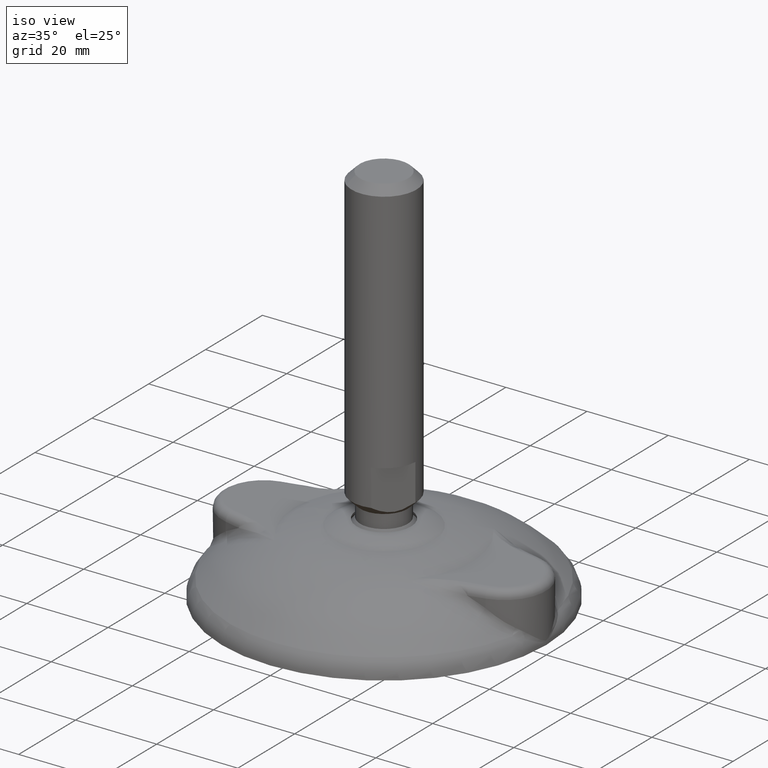
[diagram: clean part render]
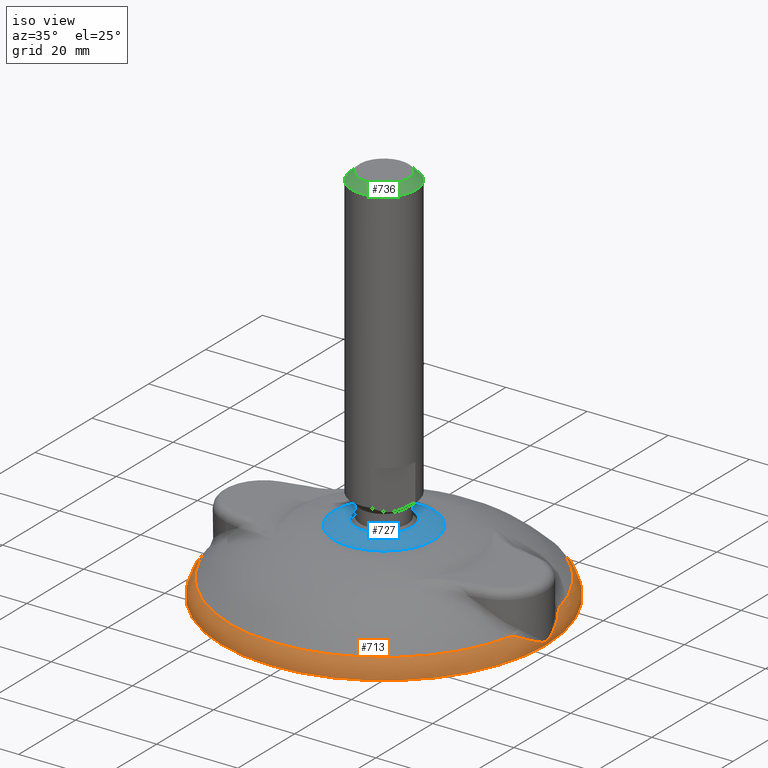
[diagram: same view with three faces highlighted in distinct colors, each labeled with its STEP entity id]
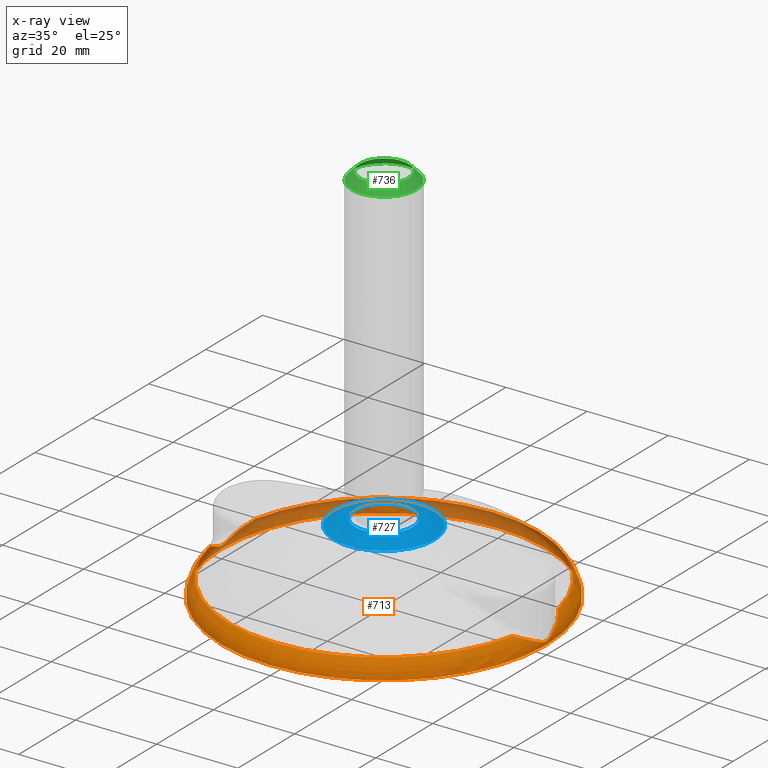
[diagram: x-ray of the same camera — body ghosted, the three highlighted faces saturated]
A machine part, iso view with three faces highlighted in distinct colors.
The next image is the same camera in x-ray (body ghosted, the three faces saturated) — at least one of them is partly hidden behind the body in this view.
Their STEP definitions:

[orange] entity #713 — the highlighted toroidal blend (fillet) surface has major radius 34 mm and minor (blend) radius 6 mm.
#51=TOROIDAL_SURFACE('',#781,34.,6.);
#104=B_SPLINE_CURVE_WITH_KNOTS('',3,(#1419,#1420,#1421,#1422,#1423,#1424,
#1425,#1426,#1427,#1428,#1429,#1430,#1431,#1432),.UNSPECIFIED.,.F.,.F.,
(4,1,1,1,1,1,1,1,1,1,1,4),(-2.06765648479848,-1.77227698697012,-1.47689748914177,
-1.32920774022759,-1.18151799131341,-1.03382824239924,-0.886138493485061,
-0.812293619027972,-0.738448744570884,-0.590758995656707,-0.295379497828354,
0.),.UNSPECIFIED.);
#110=B_SPLINE_CURVE_WITH_KNOTS('',3,(#1516,#1517,#1518,#1519,#1520,#1521,
#1522,#1523,#1524,#1525,#1526,#1527,#1528),.UNSPECIFIED.,.F.,.F.,(4,1,1,
1,1,1,1,1,1,1,4),(-2.06765648479847,-1.77227698697011,-1.47689748914176,
-1.32920774022759,-1.18151799131341,-1.03382824239923,-0.886138493485057,
-0.812293619027969,-0.738448744570881,-0.590758995656705,0.),
 .UNSPECIFIED.);
#136=FACE_BOUND('',#236,.T.);
#182=FACE_OUTER_BOUND('',#235,.T.);
#235=EDGE_LOOP('',(#574));
#236=EDGE_LOOP('',(#575,#576,#577,#578));
#297=CIRCLE('',#782,40.);
#298=CIRCLE('',#783,38.1666666666667);
#299=CIRCLE('',#784,38.1666666666667);
#352=VERTEX_POINT('',#1350);
#354=VERTEX_POINT('',#1417);
#357=VERTEX_POINT('',#1511);
#358=VERTEX_POINT('',#1513);
#359=VERTEX_POINT('',#1515);
#432=EDGE_CURVE('',#354,#352,#104,.T.);
#441=EDGE_CURVE('',#357,#357,#297,.T.);
#442=EDGE_CURVE('',#358,#354,#298,.T.);
#443=EDGE_CURVE('',#359,#358,#110,.T.);
#444=EDGE_CURVE('',#352,#359,#299,.T.);
#574=ORIENTED_EDGE('',*,*,#441,.T.);
#575=ORIENTED_EDGE('',*,*,#432,.F.);
#576=ORIENTED_EDGE('',*,*,#442,.F.);
#577=ORIENTED_EDGE('',*,*,#443,.F.);
#578=ORIENTED_EDGE('',*,*,#444,.F.);
#713=ADVANCED_FACE('',(#182,#136),#51,.T.);
#781=AXIS2_PLACEMENT_3D('',#1510,#915,#916);
#782=AXIS2_PLACEMENT_3D('',#1512,#917,#918);
#783=AXIS2_PLACEMENT_3D('',#1514,#919,#920);
#784=AXIS2_PLACEMENT_3D('',#1529,#921,#922);
#915=DIRECTION('center_axis',(0.,0.,-1.));
#916=DIRECTION('ref_axis',(-1.,0.,0.));
#917=DIRECTION('center_axis',(0.,0.,-1.));
#918=DIRECTION('ref_axis',(1.,0.,0.));
#919=DIRECTION('center_axis',(0.,0.,-1.));
#920=DIRECTION('ref_axis',(1.,0.,0.));
#921=DIRECTION('center_axis',(0.,0.,-1.));
#922=DIRECTION('ref_axis',(1.,0.,0.));
#1350=CARTESIAN_POINT('',(-37.3112884309751,8.03506067587722,-4.31727794899621));
#1417=CARTESIAN_POINT('',(-37.3112884309751,-8.03506067587723,-4.31727794899622));
#1419=CARTESIAN_POINT('Ctrl Pts',(-37.3112884309751,-8.03506067587723,-4.31727794899622));
#1420=CARTESIAN_POINT('Ctrl Pts',(-37.7955358902506,-7.3883803611949,-3.9917913138115));
#1421=CARTESIAN_POINT('Ctrl Pts',(-38.6324130396451,-6.01065853065325,-3.28893888965105));
#1422=CARTESIAN_POINT('Ctrl Pts',(-39.3456970410017,-4.15565143319743,-2.34083604302756));
#1423=CARTESIAN_POINT('Ctrl Pts',(-39.7180714553828,-2.58508284555472,-1.5860169072797));
#1424=CARTESIAN_POINT('Ctrl Pts',(-39.8964215300512,-1.38384643550719,-1.05466080128117));
#1425=CARTESIAN_POINT('Ctrl Pts',(-39.969927279042,-0.00103299503217332,
-0.683215415236275));
#1426=CARTESIAN_POINT('Ctrl Pts',(-39.9088058330918,1.15785507419118,-0.992002768279933));
#1427=CARTESIAN_POINT('Ctrl Pts',(-39.8069247124031,1.97966925527079,-1.32230740098908));
#1428=CARTESIAN_POINT('Ctrl Pts',(-39.670876708375,2.78858776611213,-1.68187608899113));
#1429=CARTESIAN_POINT('Ctrl Pts',(-39.3461488470668,4.14795993289823,-2.34049776342955));
#1430=CARTESIAN_POINT('Ctrl Pts',(-38.6319121170533,6.01510992066499,-3.2902227610459));
#1431=CARTESIAN_POINT('Ctrl Pts',(-37.7955358902506,7.38838036119488,-3.99179131381149));
#1432=CARTESIAN_POINT('Ctrl Pts',(-37.3112884309751,8.03506067587722,-4.31727794899621));
#1510=CARTESIAN_POINT('Origin',(0.,0.,0.));
#1511=CARTESIAN_POINT('',(-40.,0.,0.));
#1512=CARTESIAN_POINT('Origin',(0.,0.,0.));
#1513=CARTESIAN_POINT('',(37.3112884309751,-8.03506067587721,-4.31727794899621));
#1514=CARTESIAN_POINT('Origin',(0.,0.,-4.31727794899621));
#1515=CARTESIAN_POINT('',(37.3112884309751,8.03506067587722,-4.31727794899621));
#1516=CARTESIAN_POINT('Ctrl Pts',(37.3112884309751,8.03506067587722,-4.31727794899621));
#1517=CARTESIAN_POINT('Ctrl Pts',(37.7955358902506,7.38838036119489,-3.9917913138115));
#1518=CARTESIAN_POINT('Ctrl Pts',(38.6324081987226,6.010716309507,-3.28893502140417));
#1519=CARTESIAN_POINT('Ctrl Pts',(39.3456886125356,4.1556678555606,-2.34083913088102));
#1520=CARTESIAN_POINT('Ctrl Pts',(39.7180591074248,2.58508725382238,-1.58602954559296));
#1521=CARTESIAN_POINT('Ctrl Pts',(39.896402166162,1.38377465536843,-1.05468246139557));
#1522=CARTESIAN_POINT('Ctrl Pts',(39.9699029386646,0.000891457938325236,
-0.68326896020652));
#1523=CARTESIAN_POINT('Ctrl Pts',(39.9087641185663,-1.15810434452123,-0.992045812296393));
#1524=CARTESIAN_POINT('Ctrl Pts',(39.8068733052676,-1.97997249723183,-1.32243859709769));
#1525=CARTESIAN_POINT('Ctrl Pts',(39.6708208598756,-2.78892821243158,-1.68182047209622));
#1526=CARTESIAN_POINT('Ctrl Pts',(39.1604372058884,-4.925411808723,-2.71819903515069));
#1527=CARTESIAN_POINT('Ctrl Pts',(38.2797833495261,-6.74170004651253,-3.66630467862677));
#1528=CARTESIAN_POINT('Ctrl Pts',(37.3112884309751,-8.0350606758772,-4.31727794899621));
#1529=CARTESIAN_POINT('Origin',(0.,0.,-4.31727794899621));

[blue] entity #727 — the highlighted face is a freeform B-spline surface patch.
#31=(
BOUNDED_CURVE()
B_SPLINE_CURVE(2,(#1797,#1798,#1799),.UNSPECIFIED.,.F.,.F.)
B_SPLINE_CURVE_WITH_KNOTS((3,3),(-1.56196375083979,-1.00920639175788),
 .UNSPECIFIED.)
CURVE()
GEOMETRIC_REPRESENTATION_ITEM()
RATIONAL_B_SPLINE_CURVE((1.,0.962049906872236,1.))
REPRESENTATION_ITEM('')
);
#35=(
BOUNDED_SURFACE()
B_SPLINE_SURFACE(2,2,((#1766,#1767,#1768,#1769,#1770,#1771,#1772,#1773,
#1774),(#1775,#1776,#1777,#1778,#1779,#1780,#1781,#1782,#1783),(#1784,#1785,
#1786,#1787,#1788,#1789,#1790,#1791,#1792)),.UNSPECIFIED.,.F.,.T.,.F.)
B_SPLINE_SURFACE_WITH_KNOTS((3,3),(3,2,2,2,3),(1.00920639175788,1.56196375083979),
(-3.14159265358979,-1.5707963267949,0.,1.5707963267949,3.14159265358979),
 .UNSPECIFIED.)
GEOMETRIC_REPRESENTATION_ITEM()
RATIONAL_B_SPLINE_SURFACE(((1.,0.707106781186548,1.,0.707106781186548,1.,
0.707106781186548,1.,0.707106781186548,1.),(0.962049906872236,0.680272012989245,
0.962049906872236,0.680272012989245,0.962049906872236,0.680272012989245,
0.962049906872236,0.680272012989245,0.962049906872236),(1.,0.707106781186548,
1.,0.707106781186548,1.,0.707106781186548,1.,0.707106781186548,1.)))
REPRESENTATION_ITEM('')
SURFACE()
);
#196=FACE_OUTER_BOUND('',#254,.T.);
#254=EDGE_LOOP('',(#642,#643,#644,#645,#646,#647));
#306=CIRCLE('',#796,12.3253260654872);
#307=CIRCLE('',#797,12.3253260654872);
#309=CIRCLE('',#801,7.08832461110873);
#310=CIRCLE('',#802,7.08832461110873);
#368=VERTEX_POINT('',#1755);
#369=VERTEX_POINT('',#1756);
#371=VERTEX_POINT('',#1793);
#372=VERTEX_POINT('',#1794);
#462=EDGE_CURVE('',#368,#369,#306,.T.);
#463=EDGE_CURVE('',#369,#368,#307,.T.);
#466=EDGE_CURVE('',#371,#372,#309,.T.);
#467=EDGE_CURVE('',#372,#371,#310,.T.);
#468=EDGE_CURVE('',#372,#369,#31,.T.);
#642=ORIENTED_EDGE('',*,*,#466,.F.);
#643=ORIENTED_EDGE('',*,*,#467,.F.);
#644=ORIENTED_EDGE('',*,*,#468,.T.);
#645=ORIENTED_EDGE('',*,*,#463,.T.);
#646=ORIENTED_EDGE('',*,*,#462,.T.);
#647=ORIENTED_EDGE('',*,*,#468,.F.);
#727=ADVANCED_FACE('',(#196),#35,.F.);
#796=AXIS2_PLACEMENT_3D('',#1757,#947,#948);
#797=AXIS2_PLACEMENT_3D('',#1758,#949,#950);
#801=AXIS2_PLACEMENT_3D('',#1795,#957,#958);
#802=AXIS2_PLACEMENT_3D('',#1796,#959,#960);
#947=DIRECTION('center_axis',(0.,0.,-1.));
#948=DIRECTION('ref_axis',(1.,0.,0.));
#949=DIRECTION('center_axis',(0.,0.,-1.));
#950=DIRECTION('ref_axis',(1.,0.,0.));
#957=DIRECTION('center_axis',(0.,0.,-1.));
#958=DIRECTION('ref_axis',(1.,0.,0.));
#959=DIRECTION('center_axis',(0.,0.,-1.));
#960=DIRECTION('ref_axis',(1.,0.,0.));
#1755=CARTESIAN_POINT('',(-12.3253260654872,0.,-15.9644849588231));
#1756=CARTESIAN_POINT('',(12.3253260654872,0.,-15.9644849588231));
#1757=CARTESIAN_POINT('Origin',(0.,0.,-15.9644849588231));
#1758=CARTESIAN_POINT('Origin',(0.,0.,-15.9644849588231));
#1766=CARTESIAN_POINT('Ctrl Pts',(12.3253260654872,0.,-15.9644849588231));
#1767=CARTESIAN_POINT('Ctrl Pts',(12.3253260654872,-12.3253260654872,-15.9644849588231));
#1768=CARTESIAN_POINT('Ctrl Pts',(0.,-12.3253260654872,-15.9644849588231));
#1769=CARTESIAN_POINT('Ctrl Pts',(-12.3253260654872,-12.3253260654872,-15.9644849588231));
#1770=CARTESIAN_POINT('Ctrl Pts',(-12.3253260654872,0.,-15.9644849588231));
#1771=CARTESIAN_POINT('Ctrl Pts',(-12.3253260654872,12.3253260654872,-15.9644849588231));
#1772=CARTESIAN_POINT('Ctrl Pts',(0.,12.3253260654872,-15.9644849588231));
#1773=CARTESIAN_POINT('Ctrl Pts',(12.3253260654872,12.3253260654872,-15.9644849588231));
#1774=CARTESIAN_POINT('Ctrl Pts',(12.3253260654872,0.,-15.9644849588231));
#1775=CARTESIAN_POINT('Ctrl Pts',(9.92459026094745,0.,-17.4749478167386));
#1776=CARTESIAN_POINT('Ctrl Pts',(9.92459026094745,-9.92459026094745,-17.4749478167386));
#1777=CARTESIAN_POINT('Ctrl Pts',(0.,-9.92459026094745,-17.4749478167386));
#1778=CARTESIAN_POINT('Ctrl Pts',(-9.92459026094745,-9.92459026094745,-17.4749478167386));
#1779=CARTESIAN_POINT('Ctrl Pts',(-9.92459026094745,0.,-17.4749478167386));
#1780=CARTESIAN_POINT('Ctrl Pts',(-9.92459026094745,9.92459026094745,-17.4749478167386));
#1781=CARTESIAN_POINT('Ctrl Pts',(0.,9.92459026094745,-17.4749478167386));
#1782=CARTESIAN_POINT('Ctrl Pts',(9.92459026094745,9.92459026094745,-17.4749478167386));
#1783=CARTESIAN_POINT('Ctrl Pts',(9.92459026094745,0.,-17.4749478167386));
#1784=CARTESIAN_POINT('Ctrl Pts',(7.08832461110873,0.,-17.5));
#1785=CARTESIAN_POINT('Ctrl Pts',(7.08832461110873,-7.08832461110873,-17.5));
#1786=CARTESIAN_POINT('Ctrl Pts',(0.,-7.08832461110873,-17.5));
#1787=CARTESIAN_POINT('Ctrl Pts',(-7.08832461110873,-7.08832461110873,-17.5));
#1788=CARTESIAN_POINT('Ctrl Pts',(-7.08832461110873,0.,-17.5));
#1789=CARTESIAN_POINT('Ctrl Pts',(-7.08832461110873,7.08832461110873,-17.5));
#1790=CARTESIAN_POINT('Ctrl Pts',(0.,7.08832461110873,-17.5));
#1791=CARTESIAN_POINT('Ctrl Pts',(7.08832461110873,7.08832461110873,-17.5));
#1792=CARTESIAN_POINT('Ctrl Pts',(7.08832461110873,0.,-17.5));
#1793=CARTESIAN_POINT('',(-7.08832461110873,0.,-17.5));
#1794=CARTESIAN_POINT('',(7.08832461110873,0.,-17.5));
#1795=CARTESIAN_POINT('Origin',(0.,0.,-17.5));
#1796=CARTESIAN_POINT('Origin',(0.,0.,-17.5));
#1797=CARTESIAN_POINT('Ctrl Pts',(7.08832461110873,0.,-17.5));
#1798=CARTESIAN_POINT('Ctrl Pts',(9.92459026094745,0.,-17.4749478167386));
#1799=CARTESIAN_POINT('Ctrl Pts',(12.3253260654872,0.,-15.9644849588231));

[green] entity #736 — the highlighted conical surface has half-angle 45 deg.
#144=FACE_BOUND('',#267,.T.);
#205=FACE_OUTER_BOUND('',#266,.T.);
#266=EDGE_LOOP('',(#675));
#267=EDGE_LOOP('',(#676));
#314=CIRCLE('',#815,8.00000000000001);
#317=CIRCLE('',#819,6.00000000000001);
#382=VERTEX_POINT('',#1833);
#383=VERTEX_POINT('',#1838);
#480=EDGE_CURVE('',#382,#382,#314,.T.);
#483=EDGE_CURVE('',#383,#383,#317,.T.);
#675=ORIENTED_EDGE('',*,*,#480,.T.);
#676=ORIENTED_EDGE('',*,*,#483,.T.);
#688=CONICAL_SURFACE('',#818,7.00000000000001,44.9999999999999);
#736=ADVANCED_FACE('',(#205,#144),#688,.T.);
#815=AXIS2_PLACEMENT_3D('',#1834,#991,#992);
#818=AXIS2_PLACEMENT_3D('',#1837,#997,#998);
#819=AXIS2_PLACEMENT_3D('',#1839,#999,#1000);
#991=DIRECTION('center_axis',(0.,0.,-1.));
#992=DIRECTION('ref_axis',(1.,0.,0.));
#997=DIRECTION('center_axis',(0.,0.,1.));
#998=DIRECTION('ref_axis',(1.,0.,0.));
#999=DIRECTION('center_axis',(0.,0.,1.));
#1000=DIRECTION('ref_axis',(1.,0.,0.));
#1833=CARTESIAN_POINT('',(-8.00000000000001,9.79717439317883E-16,-69.5));
#1834=CARTESIAN_POINT('Origin',(0.,0.,-69.5));
#1837=CARTESIAN_POINT('Origin',(0.,0.,-70.5));
#1838=CARTESIAN_POINT('',(-6.00000000000001,-7.34788079488413E-16,-71.5));
#1839=CARTESIAN_POINT('Origin',(0.,0.,-71.5));